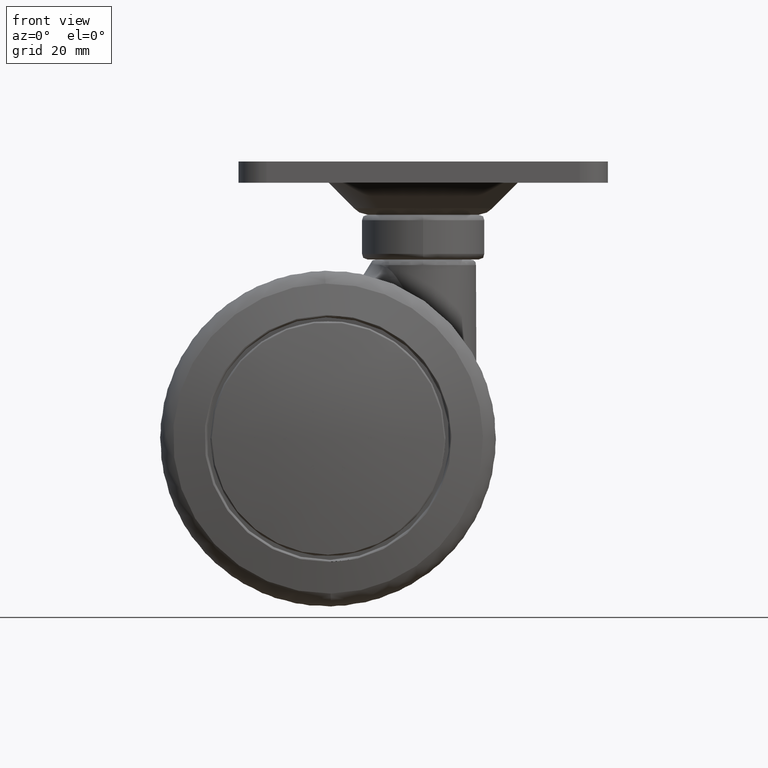
[diagram: clean part render]
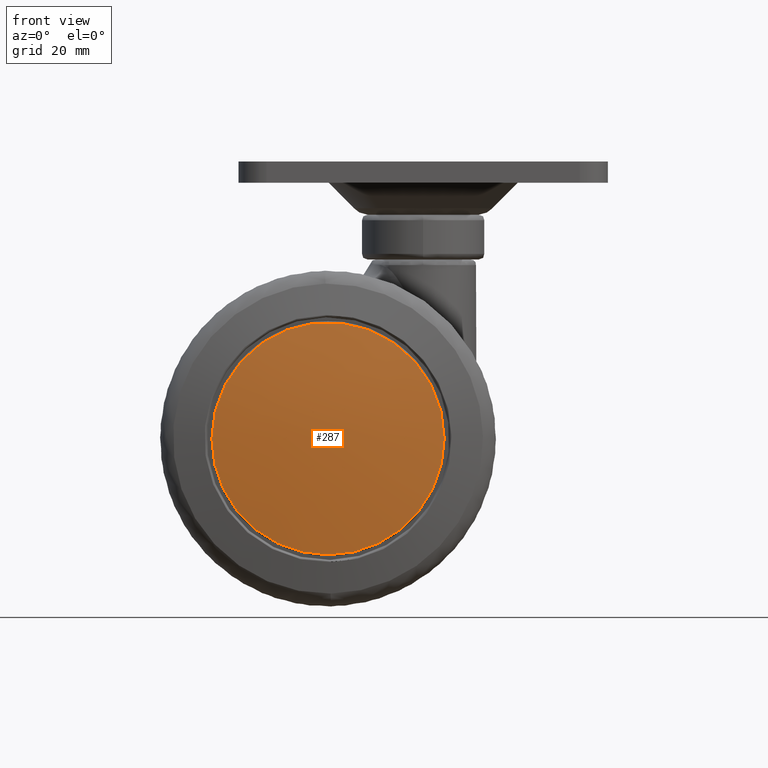
[diagram: same view with one face highlighted and labeled with its STEP entity id]
A machine part, front view. The second image highlights one B-rep face of the part: STEP entity #287.
In plain terms, the highlighted spherical surface has radius 120 mm.
Its self-contained STEP definition (entity closure, byte-faithful):
#287=ADVANCED_FACE('',(#1638),#1637,.T.);
#1637=SPHERICAL_SURFACE('',#5571,1.20000000000E+02);
#1638=FACE_OUTER_BOUND('',#5572,.T.);
#5568=CARTESIAN_POINT('',(0.00000000000E+00,9.57482120051E+01,1.27086158542E-15));
#5569=DIRECTION('',(-1.00000000000E+00,0.00000000000E+00,0.00000000000E+00));
#5570=DIRECTION('',(-0.00000000000E+00,-9.84933707899E-01,-1.72932330827E-01));
#5571=AXIS2_PLACEMENT_3D('',#5568,#5569,#5570);
#5572=EDGE_LOOP('',(#6672,#6673,#6674));
#6672=ORIENTED_EDGE('',*,*,#7104,.T.);
#6673=ORIENTED_EDGE('',*,*,#7105,.T.);
#6674=ORIENTED_EDGE('',*,*,#7106,.T.);
#7104=EDGE_CURVE('',#9125,#9126,#9127,.T.);
#7105=EDGE_CURVE('',#9126,#9133,#9134,.T.);
#7106=EDGE_CURVE('',#9133,#9125,#9140,.T.);
#9125=VERTEX_POINT('',#11128);
#9126=VERTEX_POINT('',#11129);
#9127=CIRCLE('',#11133,2.07518796992E+01);
#9133=VERTEX_POINT('',#11134);
#9134=CIRCLE('',#11138,2.07518796992E+01);
#9140=CIRCLE('',#11142,2.07518796992E+01);
#11128=CARTESIAN_POINT('',(-1.25536726842E-15,-2.24438329427E+01,-2.07518796992E+01));
#11129=CARTESIAN_POINT('',(2.07518796992E+01,-2.24438329427E+01,-6.94525906636E-10));
#11130=CARTESIAN_POINT('',(0.00000000000E+00,-2.24438329427E+01,1.27086158542E-15));
#11131=DIRECTION('',(0.00000000000E+00,-1.00000000000E+00,0.00000000000E+00));
#11132=DIRECTION('',(3.06887758792E-16,0.00000000000E+00,-1.00000000000E+00));
#11133=AXIS2_PLACEMENT_3D('',#11130,#11131,#11132);
#11134=CARTESIAN_POINT('',(-2.07518795875E+01,-2.24438329427E+01,2.15363348966E-03));
#11135=CARTESIAN_POINT('',(0.00000000000E+00,-2.24438329427E+01,1.27086158542E-15));
#11136=DIRECTION('',(0.00000000000E+00,-1.00000000000E+00,0.00000000000E+00));
#11137=DIRECTION('',(3.06887758792E-16,0.00000000000E+00,-1.00000000000E+00));
#11138=AXIS2_PLACEMENT_3D('',#11135,#11136,#11137);
#11139=CARTESIAN_POINT('',(0.00000000000E+00,-2.24438329427E+01,1.27086158542E-15));
#11140=DIRECTION('',(0.00000000000E+00,-1.00000000000E+00,0.00000000000E+00));
#11141=DIRECTION('',(3.06887758792E-16,0.00000000000E+00,-1.00000000000E+00));
#11142=AXIS2_PLACEMENT_3D('',#11139,#11140,#11141);